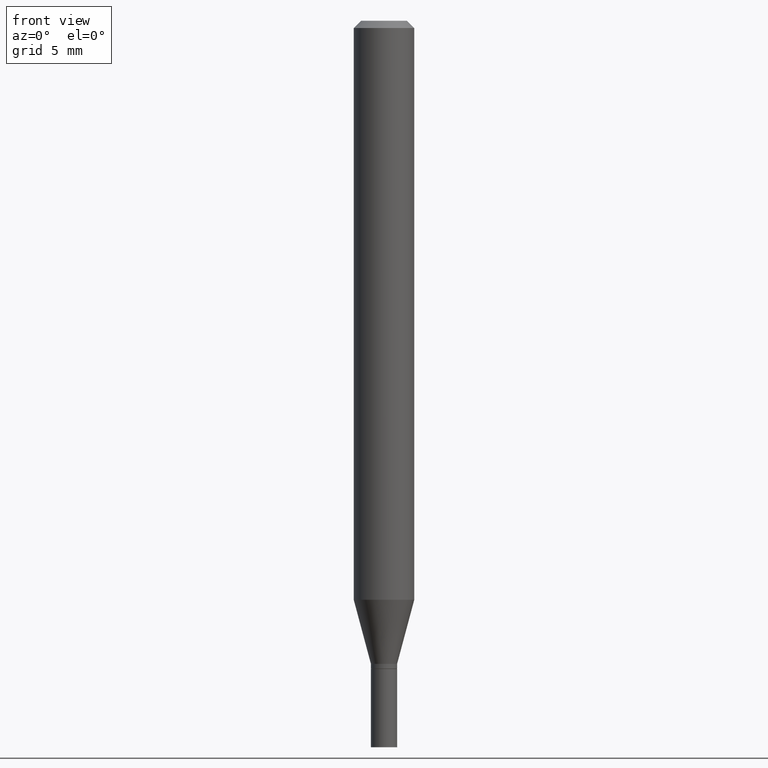
[diagram: clean part render]
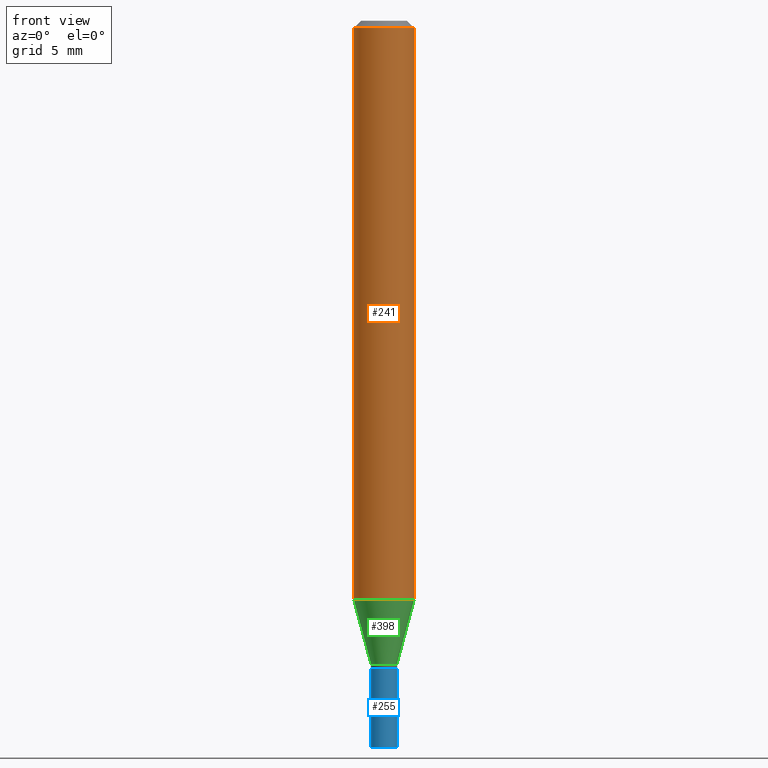
[diagram: same view with three faces highlighted in distinct colors, each labeled with its STEP entity id]
A machine part, front view with three faces highlighted in distinct colors.
Their STEP definitions:

[orange] entity #241 — the highlighted cylindrical surface (edge-blend (fillet) strip) has radius 1.5875 mm, axis along (-0, 0, 1).
#19 = DIRECTION ( 'NONE',  ( 1.000000000000000000, -6.982962677686262766E-15, 0.000000000000000000 ) ) ;
#30 = DIRECTION ( 'NONE',  ( 1.000000000000000000, -6.982962677686266711E-15, 0.000000000000000000 ) ) ;
#36 = EDGE_CURVE ( 'NONE', #402, #146, #220, .T. ) ;
#45 = DIRECTION ( 'NONE',  ( -2.445468806185136877E-29, 3.491481338843145188E-15, 1.000000000000000000 ) ) ;
#62 = AXIS2_PLACEMENT_3D ( 'NONE', #390, #67, #19 ) ;
#67 = DIRECTION ( 'NONE',  ( -2.445468806185136597E-29, 3.491481338843145583E-15, 1.000000000000000000 ) ) ;
#80 = LINE ( 'NONE', #223, #248 ) ;
#82 = CARTESIAN_POINT ( 'NONE',  ( 0.06250000000000000000, -4.888073874380388472E-16, -0.01499999999999999944 ) ) ;
#91 = VECTOR ( 'NONE', #380, 39.37007874015748143 ) ;
#118 = VERTEX_POINT ( 'NONE', #82 ) ;
#136 = EDGE_CURVE ( 'NONE', #188, #118, #210, .T. ) ;
#146 = VERTEX_POINT ( 'NONE', #195 ) ;
#153 = DIRECTION ( 'NONE',  ( 1.000000000000000000, -6.982962677686266711E-15, 4.876176775795935793E-29 ) ) ;
#158 = CARTESIAN_POINT ( 'NONE',  ( 0.06250000000000000000, -4.364351673553916694E-16, 3.047610484872459871E-30 ) ) ;
#163 = AXIS2_PLACEMENT_3D ( 'NONE', #399, #359, #30 ) ;
#173 = ORIENTED_EDGE ( 'NONE', *, *, #311, .T. ) ;
#183 = CYLINDRICAL_SURFACE ( 'NONE', #349, 0.06250000000000000000 ) ;
#184 = ORIENTED_EDGE ( 'NONE', *, *, #36, .T. ) ;
#188 = VERTEX_POINT ( 'NONE', #340 ) ;
#194 = ORIENTED_EDGE ( 'NONE', *, *, #136, .F. ) ;
#195 = CARTESIAN_POINT ( 'NONE',  ( 0.06250000000000000000, -4.610543691205524908E-15, -1.195512196331304677 ) ) ;
#210 = CIRCLE ( 'NONE', #163, 0.06250000000000000000 ) ;
#220 = CIRCLE ( 'NONE', #62, 0.06250000000000000000 ) ;
#223 = CARTESIAN_POINT ( 'NONE',  ( -0.06250000000000000000, 4.440892098500626162E-16, -3.074334431409316114E-30 ) ) ;
#241 = ADVANCED_FACE ( 'NONE', ( #419 ), #183, .T. ) ;
#248 = VECTOR ( 'NONE', #45, 39.37007874015748143 ) ;
#282 = EDGE_CURVE ( 'NONE', #402, #188, #80, .T. ) ;
#311 = EDGE_CURVE ( 'NONE', #146, #118, #417, .T. ) ;
#340 = CARTESIAN_POINT ( 'NONE',  ( -0.06250000000000000000, -1.669151162116327740E-15, -0.01499999999999999944 ) ) ;
#349 = AXIS2_PLACEMENT_3D ( 'NONE', #449, #384, #153 ) ;
#352 = ORIENTED_EDGE ( 'NONE', *, *, #282, .F. ) ;
#359 = DIRECTION ( 'NONE',  ( -2.445468806185136597E-29, 3.491481338843145583E-15, 1.000000000000000000 ) ) ;
#366 = EDGE_LOOP ( 'NONE', ( #352, #184, #173, #194 ) ) ;
#380 = DIRECTION ( 'NONE',  ( -2.445468806185136877E-29, 3.491481338843145188E-15, 1.000000000000000000 ) ) ;
#384 = DIRECTION ( 'NONE',  ( -2.445468806185136597E-29, 3.491481338843145583E-15, 1.000000000000000000 ) ) ;
#390 = CARTESIAN_POINT ( 'NONE',  ( 2.923587783542086622E-29, -4.174108523850133238E-15, -1.195512196331304677 ) ) ;
#399 = CARTESIAN_POINT ( 'NONE',  ( 3.668203209277705088E-31, -5.237222008264718399E-17, -0.01499999999999999944 ) ) ;
#402 = VERTEX_POINT ( 'NONE', #423 ) ;
#417 = LINE ( 'NONE', #158, #91 ) ;
#419 = FACE_OUTER_BOUND ( 'NONE', #366, .T. ) ;
#423 = CARTESIAN_POINT ( 'NONE',  ( -0.06250000000000000000, -3.730019314000071411E-15, -1.195512196331304677 ) ) ;
#449 = CARTESIAN_POINT ( 'NONE',  ( 0.000000000000000000, 0.000000000000000000, 0.000000000000000000 ) ) ;

[blue] entity #255 — the highlighted cylindrical surface (edge-blend (fillet) strip) has radius 0.6858 mm, axis along (-0, 0, 1).
#5 = AXIS2_PLACEMENT_3D ( 'NONE', #310, #301, #225 ) ;
#17 = DIRECTION ( 'NONE',  ( -2.445468806185136597E-29, 3.491481338843145583E-15, 1.000000000000000000 ) ) ;
#38 = DIRECTION ( 'NONE',  ( -2.445468806185136877E-29, 3.491481338843145188E-15, 1.000000000000000000 ) ) ;
#40 = CARTESIAN_POINT ( 'NONE',  ( 0.02699999999999999969, -1.885399922975291894E-16, 1.316567729464902510E-30 ) ) ;
#87 = CARTESIAN_POINT ( 'NONE',  ( 0.02699999999999999969, -5.425762000562247662E-15, -1.500000000000000222 ) ) ;
#107 = CARTESIAN_POINT ( 'NONE',  ( 3.668203209277704895E-29, -5.237222008264718177E-15, -1.500000000000000222 ) ) ;
#154 = EDGE_CURVE ( 'NONE', #339, #219, #357, .T. ) ;
#155 = CYLINDRICAL_SURFACE ( 'NONE', #5, 0.02699999999999999969 ) ;
#159 = ORIENTED_EDGE ( 'NONE', *, *, #201, .F. ) ;
#161 = CARTESIAN_POINT ( 'NONE',  ( -0.02699999999999999969, -4.762565481163196334E-15, -1.338000000000000078 ) ) ;
#164 = CARTESIAN_POINT ( 'NONE',  ( 3.272037262675712888E-29, -4.671602031372128143E-15, -1.338000000000000078 ) ) ;
#180 = EDGE_CURVE ( 'NONE', #219, #260, #300, .T. ) ;
#201 = EDGE_CURVE ( 'NONE', #339, #250, #369, .T. ) ;
#215 = CARTESIAN_POINT ( 'NONE',  ( 0.02699999999999999969, -4.860142023669657629E-15, -1.338000000000000078 ) ) ;
#216 = ORIENTED_EDGE ( 'NONE', *, *, #180, .T. ) ;
#219 = VERTEX_POINT ( 'NONE', #87 ) ;
#225 = DIRECTION ( 'NONE',  ( 1.000000000000000000, -6.982962677686266711E-15, 4.876176775795935232E-29 ) ) ;
#250 = VERTEX_POINT ( 'NONE', #161 ) ;
#255 = ADVANCED_FACE ( 'NONE', ( #271 ), #155, .T. ) ;
#260 = VERTEX_POINT ( 'NONE', #215 ) ;
#271 = FACE_OUTER_BOUND ( 'NONE', #309, .T. ) ;
#279 = CARTESIAN_POINT ( 'NONE',  ( -0.02699999999999999969, -4.762565481163196334E-15, -1.500000000000000222 ) ) ;
#293 = ORIENTED_EDGE ( 'NONE', *, *, #154, .T. ) ;
#300 = LINE ( 'NONE', #40, #437 ) ;
#301 = DIRECTION ( 'NONE',  ( -2.445468806185136597E-29, 3.491481338843145583E-15, 1.000000000000000000 ) ) ;
#309 = EDGE_LOOP ( 'NONE', ( #159, #293, #216, #342 ) ) ;
#310 = CARTESIAN_POINT ( 'NONE',  ( 0.000000000000000000, 0.000000000000000000, 0.000000000000000000 ) ) ;
#315 = CIRCLE ( 'NONE', #358, 0.02699999999999999969 ) ;
#317 = DIRECTION ( 'NONE',  ( 1.000000000000000000, -6.982962677686261189E-15, 0.000000000000000000 ) ) ;
#324 = DIRECTION ( 'NONE',  ( -2.445468806185136597E-29, 3.491481338843145583E-15, 1.000000000000000000 ) ) ;
#329 = VECTOR ( 'NONE', #38, 39.37007874015748143 ) ;
#339 = VERTEX_POINT ( 'NONE', #279 ) ;
#342 = ORIENTED_EDGE ( 'NONE', *, *, #427, .F. ) ;
#355 = DIRECTION ( 'NONE',  ( 1.000000000000000000, -6.982962677686261189E-15, 0.000000000000000000 ) ) ;
#357 = CIRCLE ( 'NONE', #406, 0.02699999999999999969 ) ;
#358 = AXIS2_PLACEMENT_3D ( 'NONE', #164, #17, #317 ) ;
#369 = LINE ( 'NONE', #420, #329 ) ;
#406 = AXIS2_PLACEMENT_3D ( 'NONE', #107, #324, #355 ) ;
#420 = CARTESIAN_POINT ( 'NONE',  ( -0.02699999999999999969, 1.918465386552270480E-16, -1.328112474368824466E-30 ) ) ;
#427 = EDGE_CURVE ( 'NONE', #250, #260, #315, .T. ) ;
#437 = VECTOR ( 'NONE', #439, 39.37007874015748143 ) ;
#439 = DIRECTION ( 'NONE',  ( -2.445468806185136877E-29, 3.491481338843145188E-15, 1.000000000000000000 ) ) ;

[green] entity #398 — the highlighted conical surface has half-angle 15 deg.
#2 = EDGE_CURVE ( 'NONE', #42, #402, #408, .T. ) ;
#3 = DIRECTION ( 'NONE',  ( -0.2588190451025207395, 5.211531920934546309E-15, 0.9659258262890682012 ) ) ;
#4 = ORIENTED_EDGE ( 'NONE', *, *, #2, .F. ) ;
#6 = CARTESIAN_POINT ( 'NONE',  ( 3.247582574613861342E-29, -4.636687217983698072E-15, -1.328000000000000069 ) ) ;
#7 = ORIENTED_EDGE ( 'NONE', *, *, #36, .F. ) ;
#9 = ORIENTED_EDGE ( 'NONE', *, *, #396, .T. ) ;
#14 = VECTOR ( 'NONE', #316, 39.37007874015748854 ) ;
#19 = DIRECTION ( 'NONE',  ( 1.000000000000000000, -6.982962677686262766E-15, 0.000000000000000000 ) ) ;
#23 = DIRECTION ( 'NONE',  ( -2.445468806185136597E-29, 3.491481338843145583E-15, 1.000000000000000000 ) ) ;
#34 = AXIS2_PLACEMENT_3D ( 'NONE', #350, #23, #244 ) ;
#36 = EDGE_CURVE ( 'NONE', #402, #146, #220, .T. ) ;
#42 = VERTEX_POINT ( 'NONE', #252 ) ;
#50 = VECTOR ( 'NONE', #3, 39.37007874015748854 ) ;
#55 = CARTESIAN_POINT ( 'NONE',  ( 0.02699999999999992684, -4.825227210281226768E-15, -1.328000000000000069 ) ) ;
#57 = CIRCLE ( 'NONE', #114, 0.02699999999999992684 ) ;
#62 = AXIS2_PLACEMENT_3D ( 'NONE', #390, #67, #19 ) ;
#67 = DIRECTION ( 'NONE',  ( -2.445468806185136597E-29, 3.491481338843145583E-15, 1.000000000000000000 ) ) ;
#84 = DIRECTION ( 'NONE',  ( -2.445468806185136597E-29, 3.491481338843145583E-15, 1.000000000000000000 ) ) ;
#99 = LINE ( 'NONE', #55, #14 ) ;
#114 = AXIS2_PLACEMENT_3D ( 'NONE', #6, #84, #337 ) ;
#135 = FACE_OUTER_BOUND ( 'NONE', #253, .T. ) ;
#146 = VERTEX_POINT ( 'NONE', #195 ) ;
#165 = EDGE_CURVE ( 'NONE', #42, #257, #57, .T. ) ;
#195 = CARTESIAN_POINT ( 'NONE',  ( 0.06250000000000000000, -4.610543691205524908E-15, -1.195512196331304677 ) ) ;
#213 = CARTESIAN_POINT ( 'NONE',  ( -0.02699999999999992684, -4.444840679328471640E-15, -1.328000000000000069 ) ) ;
#220 = CIRCLE ( 'NONE', #62, 0.06250000000000000000 ) ;
#244 = DIRECTION ( 'NONE',  ( 1.000000000000000000, -6.982962677686279332E-15, 0.000000000000000000 ) ) ;
#252 = CARTESIAN_POINT ( 'NONE',  ( -0.02699999999999992684, -4.087429996664271131E-15, -1.328000000000000069 ) ) ;
#253 = EDGE_LOOP ( 'NONE', ( #4, #332, #9, #7 ) ) ;
#257 = VERTEX_POINT ( 'NONE', #443 ) ;
#316 = DIRECTION ( 'NONE',  ( 0.2588190451025207395, 1.565188264969626109E-15, 0.9659258262890682012 ) ) ;
#332 = ORIENTED_EDGE ( 'NONE', *, *, #165, .T. ) ;
#337 = DIRECTION ( 'NONE',  ( 1.000000000000000000, -6.982962677686279332E-15, 0.000000000000000000 ) ) ;
#350 = CARTESIAN_POINT ( 'NONE',  ( 3.247582574613861342E-29, -4.636687217983698072E-15, -1.328000000000000069 ) ) ;
#390 = CARTESIAN_POINT ( 'NONE',  ( 2.923587783542086622E-29, -4.174108523850133238E-15, -1.195512196331304677 ) ) ;
#396 = EDGE_CURVE ( 'NONE', #257, #146, #99, .T. ) ;
#398 = ADVANCED_FACE ( 'NONE', ( #135 ), #416, .T. ) ;
#402 = VERTEX_POINT ( 'NONE', #423 ) ;
#408 = LINE ( 'NONE', #213, #50 ) ;
#416 = CONICAL_SURFACE ( 'NONE', #34, 0.02699999999999992684, 0.2617993877991494633 ) ;
#423 = CARTESIAN_POINT ( 'NONE',  ( -0.06250000000000000000, -3.730019314000071411E-15, -1.195512196331304677 ) ) ;
#443 = CARTESIAN_POINT ( 'NONE',  ( 0.02699999999999992684, -4.825227210281226768E-15, -1.328000000000000069 ) ) ;